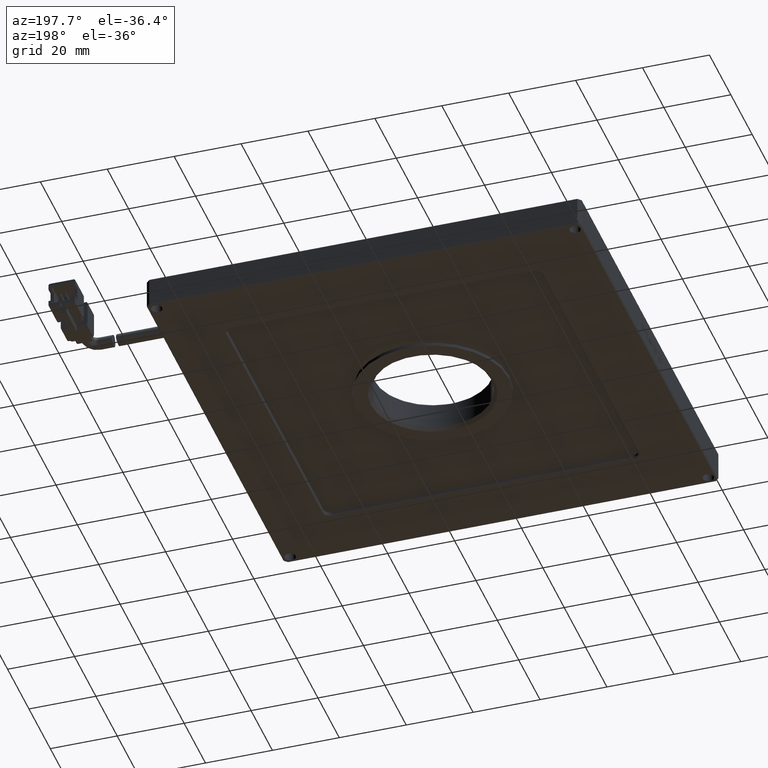
[diagram: clean part render]
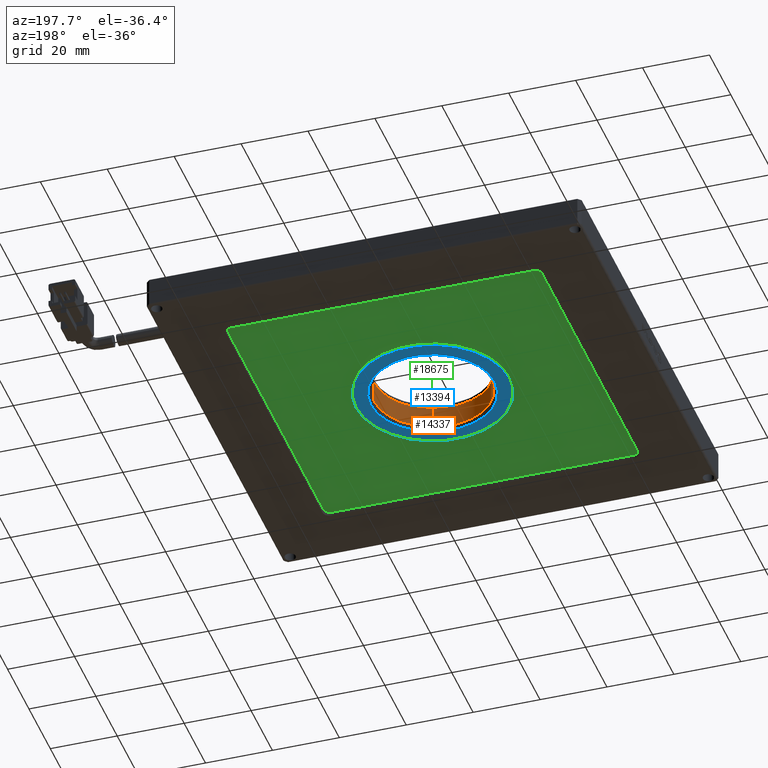
[diagram: same view with three faces highlighted in distinct colors, each labeled with its STEP entity id]
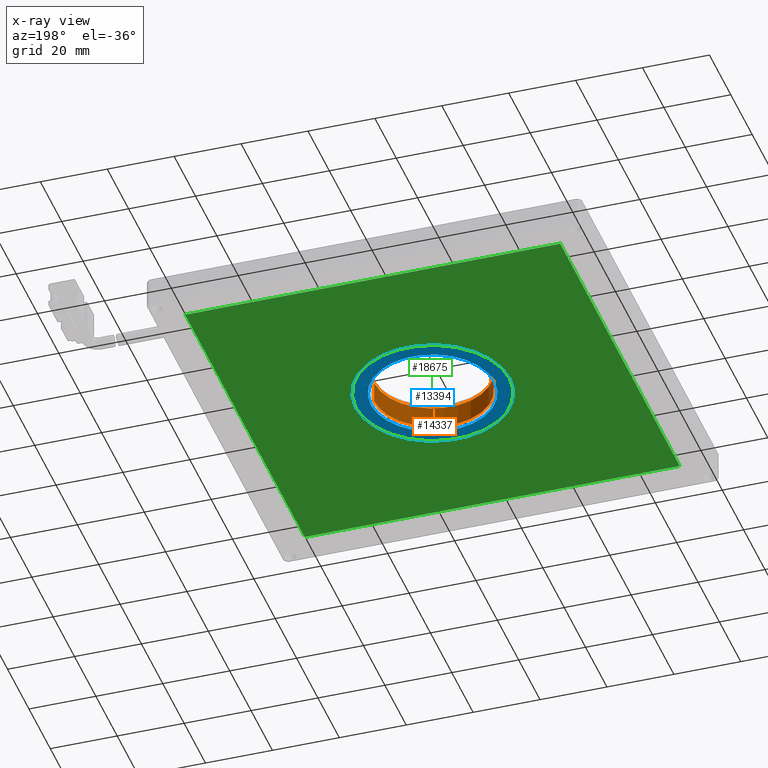
[diagram: x-ray of the same camera — body ghosted, the three highlighted faces saturated]
A machine part, auxiliary view with three faces highlighted in distinct colors.
The next image is the same camera in x-ray (body ghosted, the three faces saturated) — at least one of them is partly hidden behind the body in this view.
Their STEP definitions:

[orange] entity #14337 — the highlighted cylindrical surface (partial cylindrical patch) has radius 17.5 mm, axis along (0, 0, -1).
#248 = VECTOR ( 'NONE', #4479, 1000.000000000000000 ) ;
#855 = EDGE_CURVE ( 'NONE', #1907, #9894, #14085, .T. ) ;
#1028 = DIRECTION ( 'NONE',  ( -1.000000000000000000, -1.982541115402064900E-016, 0.0000000000000000000 ) ) ;
#1907 = VERTEX_POINT ( 'NONE', #19612 ) ;
#1979 = VERTEX_POINT ( 'NONE', #11802 ) ;
#2091 = DIRECTION ( 'NONE',  ( 0.0000000000000000000, 0.0000000000000000000, -1.000000000000000000 ) ) ;
#2597 = EDGE_CURVE ( 'NONE', #1979, #9894, #4068, .T. ) ;
#2622 = ORIENTED_EDGE ( 'NONE', *, *, #2597, .T. ) ;
#2639 = CARTESIAN_POINT ( 'NONE',  ( 26.12907407407412200, 24.05944444444444500, 4.499999999999997300 ) ) ;
#3327 = CIRCLE ( 'NONE', #6010, 17.50000000000000400 ) ;
#3394 = DIRECTION ( 'NONE',  ( 0.0000000000000000000, 0.0000000000000000000, -1.000000000000000000 ) ) ;
#3639 = AXIS2_PLACEMENT_3D ( 'NONE', #19761, #13398, #1028 ) ;
#4068 = CIRCLE ( 'NONE', #3639, 17.50000000000000400 ) ;
#4116 = EDGE_CURVE ( 'NONE', #9175, #1979, #13734, .T. ) ;
#4479 = DIRECTION ( 'NONE',  ( 0.0000000000000000000, 0.0000000000000000000, -1.000000000000000000 ) ) ;
#5057 = FACE_OUTER_BOUND ( 'NONE', #17845, .T. ) ;
#5774 = ORIENTED_EDGE ( 'NONE', *, *, #6175, .F. ) ;
#6010 = AXIS2_PLACEMENT_3D ( 'NONE', #2639, #2091, #17883 ) ;
#6175 = EDGE_CURVE ( 'NONE', #9175, #1907, #3327, .T. ) ;
#8773 = CYLINDRICAL_SURFACE ( 'NONE', #18403, 17.50000000000000400 ) ;
#9175 = VERTEX_POINT ( 'NONE', #14097 ) ;
#9244 = VECTOR ( 'NONE', #12990, 1000.000000000000000 ) ;
#9817 = CARTESIAN_POINT ( 'NONE',  ( 26.12907407407412200, 24.05944444444444500, -61.53117956449462900 ) ) ;
#9894 = VERTEX_POINT ( 'NONE', #14884 ) ;
#11449 = DIRECTION ( 'NONE',  ( -1.000000000000000000, -1.982541115402064900E-016, 0.0000000000000000000 ) ) ;
#11802 = CARTESIAN_POINT ( 'NONE',  ( 43.62907407407412600, 24.05944444444444800, -1.999999999999994900 ) ) ;
#12990 = DIRECTION ( 'NONE',  ( 0.0000000000000000000, 0.0000000000000000000, -1.000000000000000000 ) ) ;
#13062 = CARTESIAN_POINT ( 'NONE',  ( 8.629074074074115000, 24.05944444444444100, -61.53117956449462900 ) ) ;
#13398 = DIRECTION ( 'NONE',  ( 0.0000000000000000000, 0.0000000000000000000, -1.000000000000000000 ) ) ;
#13656 = CARTESIAN_POINT ( 'NONE',  ( 43.62907407407412600, 24.05944444444444800, -61.53117956449462900 ) ) ;
#13734 = LINE ( 'NONE', #13656, #248 ) ;
#14085 = LINE ( 'NONE', #13062, #9244 ) ;
#14097 = CARTESIAN_POINT ( 'NONE',  ( 43.62907407407412600, 24.05944444444444800, 4.499999999999997300 ) ) ;
#14337 = ADVANCED_FACE ( 'NONE', ( #5057 ), #8773, .F. ) ;
#14884 = CARTESIAN_POINT ( 'NONE',  ( 8.629074074074115000, 24.05944444444444100, -1.999999999999994900 ) ) ;
#17845 = EDGE_LOOP ( 'NONE', ( #5774, #18531, #2622, #20074 ) ) ;
#17883 = DIRECTION ( 'NONE',  ( -1.000000000000000000, -1.982541115402064900E-016, 0.0000000000000000000 ) ) ;
#18403 = AXIS2_PLACEMENT_3D ( 'NONE', #9817, #3394, #11449 ) ;
#18531 = ORIENTED_EDGE ( 'NONE', *, *, #4116, .T. ) ;
#19612 = CARTESIAN_POINT ( 'NONE',  ( 8.629074074074115000, 24.05944444444444100, 4.499999999999997300 ) ) ;
#19761 = CARTESIAN_POINT ( 'NONE',  ( 26.12907407407412200, 24.05944444444444500, -1.999999999999994900 ) ) ;
#20074 = ORIENTED_EDGE ( 'NONE', *, *, #855, .F. ) ;

[blue] entity #13394 — the highlighted planar face has unit normal (-0, 0, 1).
#160 = EDGE_CURVE ( 'NONE', #19141, #18717, #3097, .T. ) ;
#472 = CARTESIAN_POINT ( 'NONE',  ( 26.12907407407412200, 24.05944444444444500, -3.000000000000006200 ) ) ;
#1125 = ORIENTED_EDGE ( 'NONE', *, *, #8360, .F. ) ;
#1234 = EDGE_CURVE ( 'NONE', #18717, #19141, #9454, .T. ) ;
#1963 = CARTESIAN_POINT ( 'NONE',  ( 7.629074074074086600, 24.05944444444444100, -3.000000000000006200 ) ) ;
#2384 = AXIS2_PLACEMENT_3D ( 'NONE', #6557, #19138, #14417 ) ;
#2510 = EDGE_LOOP ( 'NONE', ( #14249, #12247 ) ) ;
#2786 = DIRECTION ( 'NONE',  ( 1.000000000000000000, 1.110223024625156300E-016, 0.0000000000000000000 ) ) ;
#2941 = CARTESIAN_POINT ( 'NONE',  ( 26.12907407407412200, 24.05944444444444500, -3.000000000000006200 ) ) ;
#3068 = PLANE ( 'NONE',  #16555 ) ;
#3097 = CIRCLE ( 'NONE', #15649, 22.90000000000000900 ) ;
#4532 = ORIENTED_EDGE ( 'NONE', *, *, #18946, .F. ) ;
#5471 = CARTESIAN_POINT ( 'NONE',  ( 26.12907407407412200, 24.05944444444444500, -3.000000000000002700 ) ) ;
#5472 = EDGE_LOOP ( 'NONE', ( #1125, #4532 ) ) ;
#6557 = CARTESIAN_POINT ( 'NONE',  ( 26.12907407407412200, 24.05944444444444500, -3.000000000000002700 ) ) ;
#7003 = AXIS2_PLACEMENT_3D ( 'NONE', #472, #14535, #9785 ) ;
#7238 = CARTESIAN_POINT ( 'NONE',  ( 44.62907407407415400, 24.05944444444444800, -3.000000000000006200 ) ) ;
#7820 = CIRCLE ( 'NONE', #16437, 18.50000000000003600 ) ;
#8360 = EDGE_CURVE ( 'NONE', #19031, #16428, #7820, .T. ) ;
#9241 = CARTESIAN_POINT ( 'NONE',  ( 26.12907407407411900, 41.55944444444445200, -3.000000000000004400 ) ) ;
#9454 = CIRCLE ( 'NONE', #2384, 22.90000000000000900 ) ;
#9785 = DIRECTION ( 'NONE',  ( -1.000000000000000000, -1.875376730785733800E-016, 0.0000000000000000000 ) ) ;
#10731 = CIRCLE ( 'NONE', #7003, 18.50000000000003600 ) ;
#11206 = FACE_BOUND ( 'NONE', #5472, .T. ) ;
#11747 = DIRECTION ( 'NONE',  ( -1.000000000000000000, -1.515042337097647400E-016, 0.0000000000000000000 ) ) ;
#11778 = CARTESIAN_POINT ( 'NONE',  ( 49.02907407407412400, 24.05944444444445200, -3.000000000000002700 ) ) ;
#12247 = ORIENTED_EDGE ( 'NONE', *, *, #160, .F. ) ;
#12398 = FACE_OUTER_BOUND ( 'NONE', #2510, .T. ) ;
#13394 = ADVANCED_FACE ( 'NONE', ( #12398, #11206 ), #3068, .F. ) ;
#13401 = DIRECTION ( 'NONE',  ( -0.0000000000000000000, -0.0000000000000000000, 1.000000000000000000 ) ) ;
#13924 = DIRECTION ( 'NONE',  ( 0.0000000000000000000, 0.0000000000000000000, -1.000000000000000000 ) ) ;
#13945 = CARTESIAN_POINT ( 'NONE',  ( 3.229074074074109700, 24.05944444444444100, -3.000000000000002700 ) ) ;
#14249 = ORIENTED_EDGE ( 'NONE', *, *, #1234, .F. ) ;
#14417 = DIRECTION ( 'NONE',  ( -1.000000000000000000, -1.515042337097647400E-016, 0.0000000000000000000 ) ) ;
#14535 = DIRECTION ( 'NONE',  ( 0.0000000000000000000, 0.0000000000000000000, -1.000000000000000000 ) ) ;
#15649 = AXIS2_PLACEMENT_3D ( 'NONE', #5471, #13401, #11747 ) ;
#16428 = VERTEX_POINT ( 'NONE', #7238 ) ;
#16437 = AXIS2_PLACEMENT_3D ( 'NONE', #2941, #13924, #18450 ) ;
#16555 = AXIS2_PLACEMENT_3D ( 'NONE', #9241, #20139, #2786 ) ;
#18450 = DIRECTION ( 'NONE',  ( -1.000000000000000000, -1.875376730785733800E-016, 0.0000000000000000000 ) ) ;
#18717 = VERTEX_POINT ( 'NONE', #13945 ) ;
#18946 = EDGE_CURVE ( 'NONE', #16428, #19031, #10731, .T. ) ;
#19031 = VERTEX_POINT ( 'NONE', #1963 ) ;
#19138 = DIRECTION ( 'NONE',  ( -0.0000000000000000000, -0.0000000000000000000, 1.000000000000000000 ) ) ;
#19141 = VERTEX_POINT ( 'NONE', #11778 ) ;
#20139 = DIRECTION ( 'NONE',  ( -0.0000000000000000000, 0.0000000000000000000, 1.000000000000000000 ) ) ;

[green] entity #18675 — the highlighted planar face has unit normal (0, 0, -1).
#82 = ORIENTED_EDGE ( 'NONE', *, *, #4832, .T. ) ;
#192 = ORIENTED_EDGE ( 'NONE', *, *, #8254, .T. ) ;
#1899 = EDGE_CURVE ( 'NONE', #7095, #18393, #20016, .T. ) ;
#2723 = CARTESIAN_POINT ( 'NONE',  ( -29.87092592592589200, 80.05944444444445200, -2.000000000000000000 ) ) ;
#3586 = CARTESIAN_POINT ( 'NONE',  ( -29.87092592592589200, -31.94055555555555500, -2.000000000000000000 ) ) ;
#4641 = CARTESIAN_POINT ( 'NONE',  ( 26.12907407407411900, 24.05944444444444500, -2.000000000000000000 ) ) ;
#4832 = EDGE_CURVE ( 'NONE', #18757, #5460, #15675, .T. ) ;
#5291 = VERTEX_POINT ( 'NONE', #14830 ) ;
#5318 = DIRECTION ( 'NONE',  ( 1.000000000000000000, 0.0000000000000000000, 0.0000000000000000000 ) ) ;
#5345 = EDGE_CURVE ( 'NONE', #5460, #14289, #5629, .T. ) ;
#5460 = VERTEX_POINT ( 'NONE', #2723 ) ;
#5629 = LINE ( 'NONE', #19484, #8344 ) ;
#5640 = DIRECTION ( 'NONE',  ( 0.0000000000000000000, 0.0000000000000000000, -1.000000000000000000 ) ) ;
#6222 = DIRECTION ( 'NONE',  ( -1.000000000000000000, 0.0000000000000000000, 0.0000000000000000000 ) ) ;
#6487 = DIRECTION ( 'NONE',  ( -1.000000000000000000, -0.0000000000000000000, 0.0000000000000000000 ) ) ;
#6734 = AXIS2_PLACEMENT_3D ( 'NONE', #18083, #5640, #7216 ) ;
#6772 = DIRECTION ( 'NONE',  ( -0.0000000000000000000, 1.000000000000000000, 0.0000000000000000000 ) ) ;
#7095 = VERTEX_POINT ( 'NONE', #9038 ) ;
#7216 = DIRECTION ( 'NONE',  ( -1.000000000000000000, 0.0000000000000000000, -0.0000000000000000000 ) ) ;
#7370 = LINE ( 'NONE', #9224, #10090 ) ;
#8254 = EDGE_CURVE ( 'NONE', #18393, #7095, #15175, .T. ) ;
#8344 = VECTOR ( 'NONE', #5318, 1000.000000000000000 ) ;
#8638 = DIRECTION ( 'NONE',  ( 0.0000000000000000000, 0.0000000000000000000, 1.000000000000000000 ) ) ;
#9038 = CARTESIAN_POINT ( 'NONE',  ( 4.629074074074115000, 24.05944444444444500, -2.000000000000000000 ) ) ;
#9224 = CARTESIAN_POINT ( 'NONE',  ( 82.12907407407411100, -31.94055555555555500, -2.000000000000000000 ) ) ;
#9760 = EDGE_CURVE ( 'NONE', #5291, #18757, #19005, .T. ) ;
#10090 = VECTOR ( 'NONE', #17272, 1000.000000000000000 ) ;
#10207 = DIRECTION ( 'NONE',  ( -1.000000000000000000, 0.0000000000000000000, 0.0000000000000000000 ) ) ;
#10292 = FACE_OUTER_BOUND ( 'NONE', #14771, .T. ) ;
#10336 = AXIS2_PLACEMENT_3D ( 'NONE', #15019, #8638, #10207 ) ;
#10554 = VECTOR ( 'NONE', #6772, 1000.000000000000000 ) ;
#11037 = CARTESIAN_POINT ( 'NONE',  ( 82.12907407407411100, 80.05944444444445200, -2.000000000000000000 ) ) ;
#12511 = CARTESIAN_POINT ( 'NONE',  ( -29.87092592592589200, -31.94055555555555500, -2.000000000000000000 ) ) ;
#12559 = EDGE_LOOP ( 'NONE', ( #16025, #192 ) ) ;
#13796 = ORIENTED_EDGE ( 'NONE', *, *, #15742, .T. ) ;
#14289 = VERTEX_POINT ( 'NONE', #11037 ) ;
#14771 = EDGE_LOOP ( 'NONE', ( #13796, #18858, #82, #18455 ) ) ;
#14830 = CARTESIAN_POINT ( 'NONE',  ( 82.12907407407411100, -31.94055555555555500, -2.000000000000000000 ) ) ;
#14874 = PLANE ( 'NONE',  #6734 ) ;
#15019 = CARTESIAN_POINT ( 'NONE',  ( 26.12907407407411900, 24.05944444444444500, -2.000000000000000000 ) ) ;
#15175 = CIRCLE ( 'NONE', #19587, 21.50000000000000000 ) ;
#15600 = DIRECTION ( 'NONE',  ( 0.0000000000000000000, 0.0000000000000000000, 1.000000000000000000 ) ) ;
#15675 = LINE ( 'NONE', #15937, #10554 ) ;
#15742 = EDGE_CURVE ( 'NONE', #14289, #5291, #7370, .T. ) ;
#15911 = CARTESIAN_POINT ( 'NONE',  ( 47.62907407407411900, 24.05944444444444800, -2.000000000000000000 ) ) ;
#15937 = CARTESIAN_POINT ( 'NONE',  ( -29.87092592592589200, -31.94055555555555500, -2.000000000000000000 ) ) ;
#16025 = ORIENTED_EDGE ( 'NONE', *, *, #1899, .T. ) ;
#17272 = DIRECTION ( 'NONE',  ( -0.0000000000000000000, -1.000000000000000000, 0.0000000000000000000 ) ) ;
#17549 = VECTOR ( 'NONE', #6487, 1000.000000000000000 ) ;
#17615 = FACE_BOUND ( 'NONE', #12559, .T. ) ;
#18083 = CARTESIAN_POINT ( 'NONE',  ( -29.87092592592589200, 80.05944444444445200, -2.000000000000000000 ) ) ;
#18393 = VERTEX_POINT ( 'NONE', #15911 ) ;
#18455 = ORIENTED_EDGE ( 'NONE', *, *, #5345, .T. ) ;
#18675 = ADVANCED_FACE ( 'NONE', ( #10292, #17615 ), #14874, .T. ) ;
#18757 = VERTEX_POINT ( 'NONE', #12511 ) ;
#18858 = ORIENTED_EDGE ( 'NONE', *, *, #9760, .T. ) ;
#19005 = LINE ( 'NONE', #3586, #17549 ) ;
#19484 = CARTESIAN_POINT ( 'NONE',  ( -29.87092592592589200, 80.05944444444445200, -2.000000000000000000 ) ) ;
#19587 = AXIS2_PLACEMENT_3D ( 'NONE', #4641, #15600, #6222 ) ;
#20016 = CIRCLE ( 'NONE', #10336, 21.50000000000000000 ) ;